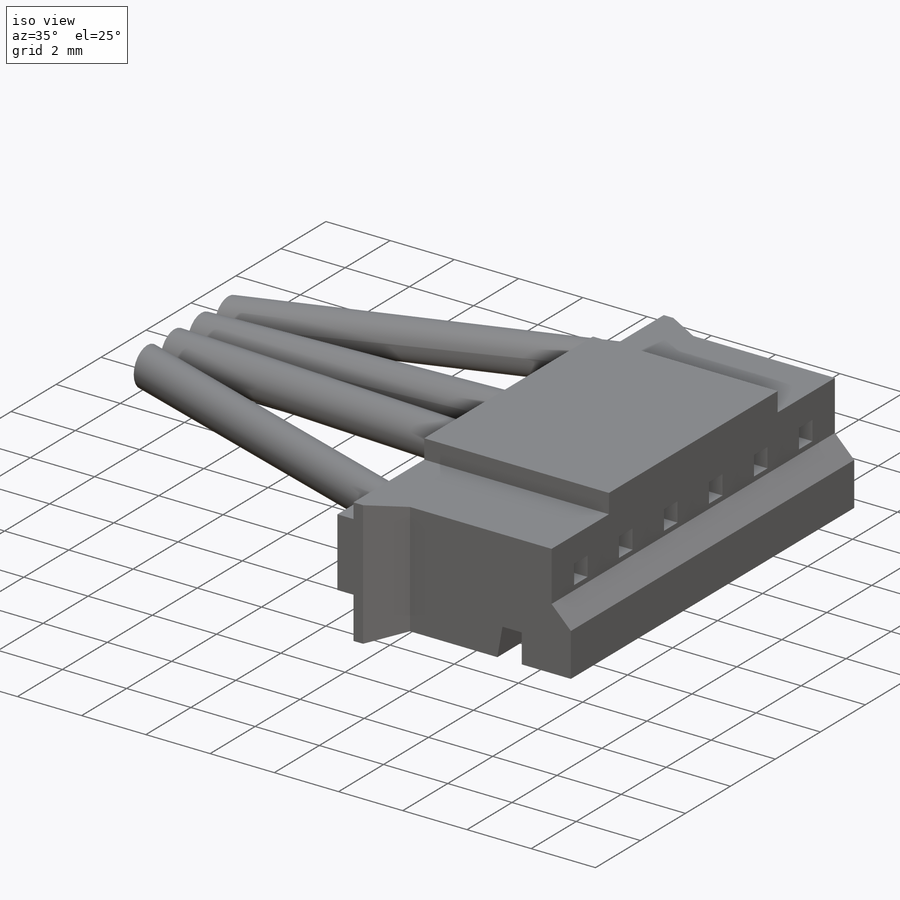
[diagram: iso view]
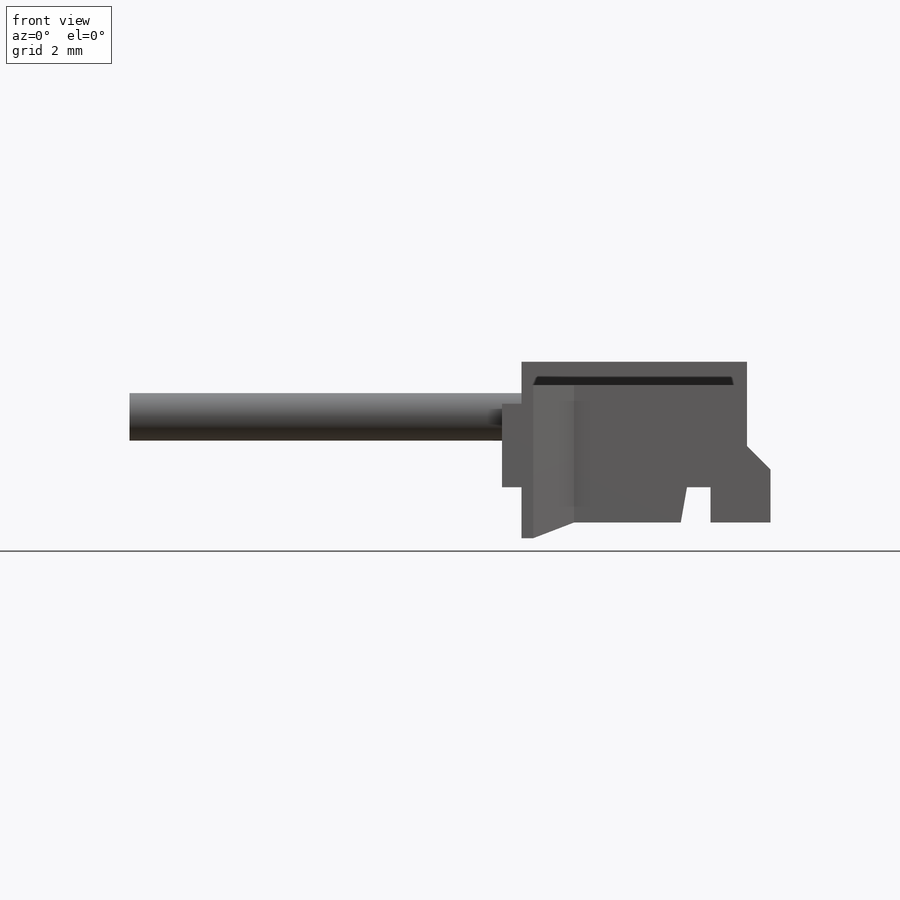
[diagram: front view]
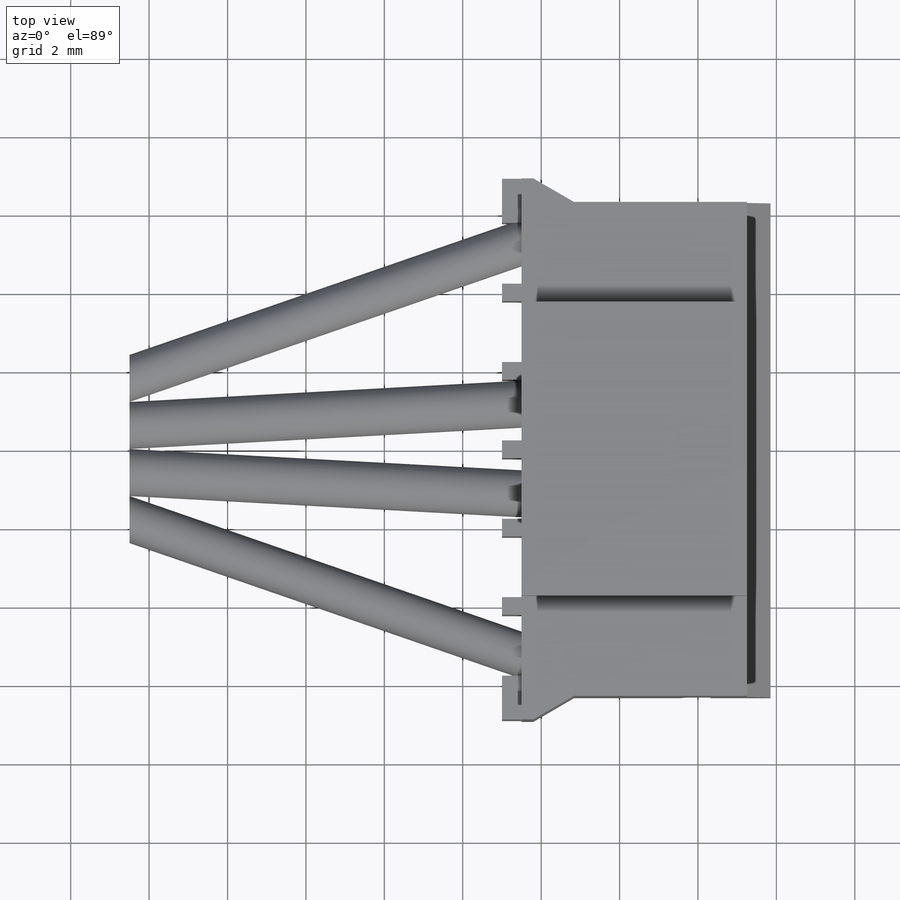
[diagram: top view]
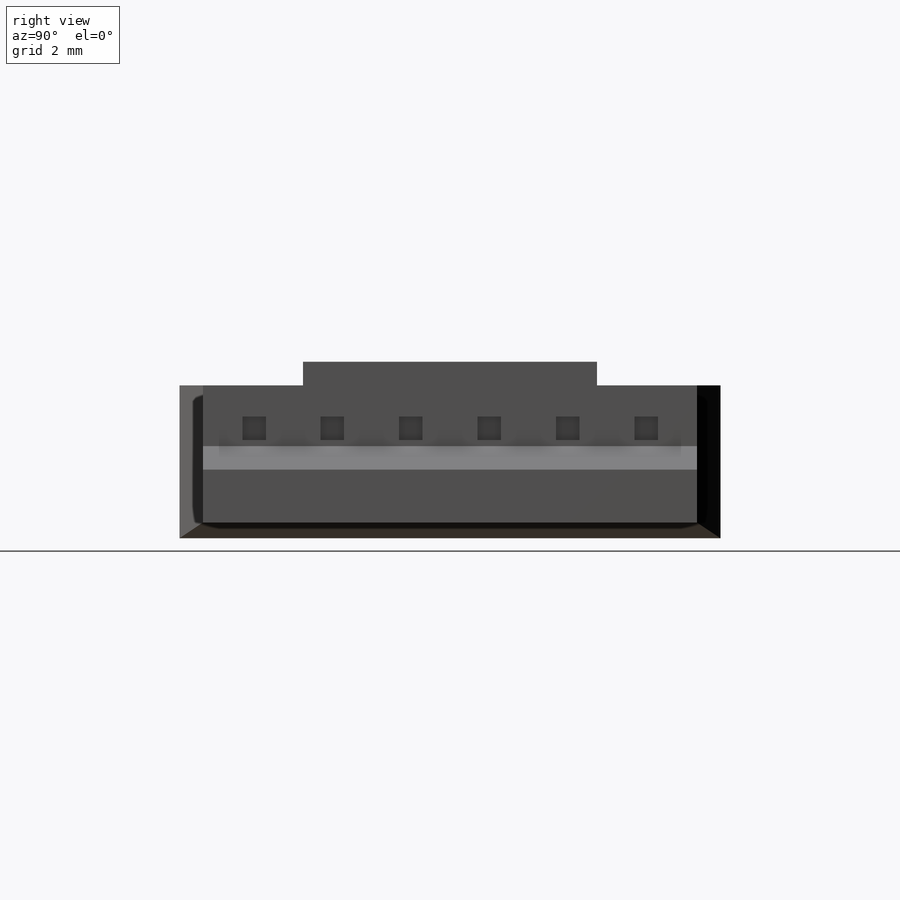
[diagram: right view]
SOLIDWORKS PART (.sldprt)
format: sldprt  version: not decoded by parser v0  size: 1,398,784 bytes
history: native  units: mm
features: sketch x17, extrude x10, thread x6, plane x5, chamfer x3, cut_extrude x2, move_body x2, sweep x2, delete_body x2, material x1, mirror x1 + 1 further entry (+14 scaffold rows collapsed; 4 parser-record rows omitted)
feature tree (70):
  scaffold x14  (default folders/planes/origin — collapsed)
  material  "acero"
  plane  "Alzado"
  plane  "Planta"
  plane  "Vista lateral"
  sketch  "Croquis1"  dims[D1=35.0mm]
  extrude  "Saliente-Extruir1"  Depth=35mm
  chamfer  "Chaflán1"  Distance=4mm Angle=45deg
  sketch  "Croquis3"  dims[D1=22.0mm]
  cut_extrude  "Cortar-Extruir1"  Depth=0.4mm
  plane  "Plano1"  Offset=38.2mm
  sketch  "Croquis4"  dims[D1=22.0mm D2=8.0mm]
  extrude  "Saliente-Extruir2"  [1 undecoded]
  chamfer  "Chaflán2"  Distance=0.5mm Angle=45deg
  sketch  "Croquis5"  dims[D1=5.0mm]
  extrude  "Saliente-Extruir3"  Depth=19mm
  chamfer  "Chaflán3"  Distance=0.25mm Angle=45deg
  sketch  "Croquis12"  dims[D1=0.15mm]
  extrude  "Saliente-Extruir9"  Depth=7.5mm
  sketch  "Croquis13"
  extrude  "Saliente-Extruir10"  Depth=7.5mm
  sketch  "Croquis7"  dims[D1=2.5mm D2=25.7mm]
  cut_extrude  "Cortar-Extruir3"  [1 undecoded]
  thread  "Rosca cosmética2"  Diameter=4.5mm  [1 undecoded]
  thread  "Rosca cosmética3"  Diameter=4.5mm  [1 undecoded]
  thread  "Rosca cosmética4"  Diameter=4.5mm  [1 undecoded]
  thread  "Rosca cosmética5"  Diameter=4.5mm  [1 undecoded]
  thread  "Rosca cosmética6"  Diameter=4.5mm  [1 undecoded]
  thread  "Rosca cosmética7"  Diameter=4.5mm  [1 undecoded]
  sketch  "Croquis8"  dims[D1=3.5mm D2=4.5mm D3=1.0mm D4=0.25mm]
  extrude  "Saliente-Extruir4"  Depth=0.1mm
  sketch  "Croquis9"  dims[D1=1.15mm]
  extrude  "Saliente-Extruir6"  Depth=15mm
  sketch  "Croquis10"  dims[D1=1.0mm D2=4.5mm D3=3.5mm D4=0.15mm]
  extrude  "Saliente-Extruir7"  Depth=0.1mm
  sketch  "Croquis11"  dims[c1.D1=~2.998735mm c2.D1=~33.684487deg c3.D1=~5.280152mm c3.D2=~3.599869mm]
  extrude  "Saliente-Extruir8"  Depth=150mm
  sketch  "Sketch1"  dims[c1.D1=1.2mm c1.D2=~1.230714mm c2.D1=~3.20503mm c2.D2=2.3mm c3.D1=~0.051912mm c3.D3=0.2mm c3.D2=0.2mm]
  extrude  "Boss-Extrude1"  Depth=130mm
  "PHR-6"
  parser-record x4  (decoder bookkeeping rows leaked as tree rows — omitted from the tree; the rows remain in map.json)
  move_body  "Body-Move/Copy2"
  move_body  "Distance1"
  sketch  "Sketch2"
  plane  "Plane1"
  sketch  "Sketch3"  dims[D1=~13.512242mm]
  sketch  "Sketch4"  dims[D1=1.19mm D2=1.2mm]
  sweep  "Sweep2"
  sketch  "Sketch5"
  sketch  "Sketch6"  dims[D1=~13.512242mm]
  sweep  "Sweep6"
  mirror  "Mirror2"
  delete_body  "Body-Delete1"
  delete_body  "Body-Delete2"
decode coverage: 33 of 45 modeling features carry decoded parameters; 1 rows unclassified (native names shown)
note: ~ marks probable driven/reference dimensions
note: 8 parameter values undecoded
note: suppression state not decoded; provenance and decode notes live in map.json
